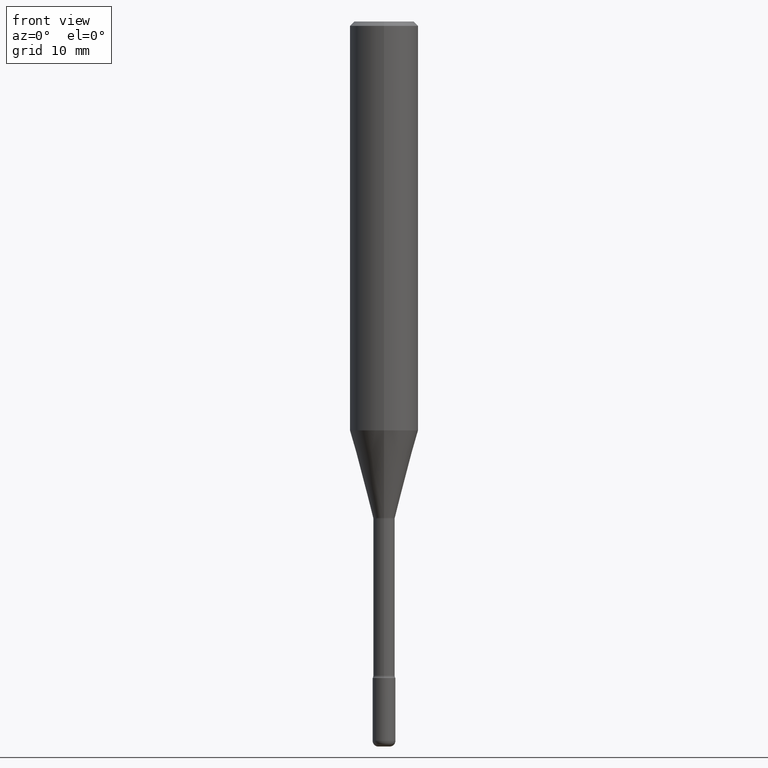
[diagram: clean part render]
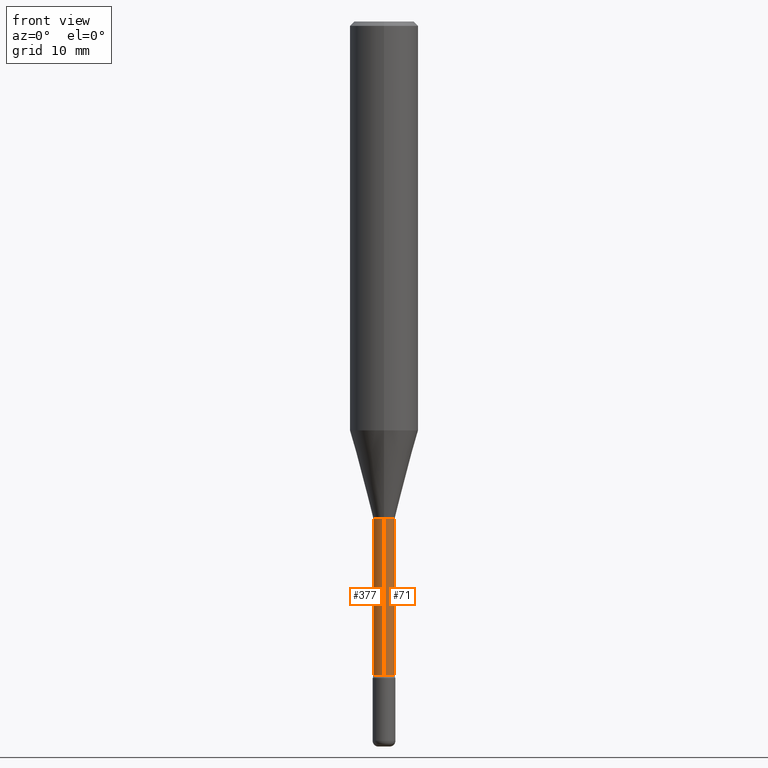
[diagram: same view with one multi-face feature highlighted, each face labeled with its STEP entity id]
A machine part, front view. The highlighted faces form ONE feature: a constant-radius fillet chain: 2 tangent blend faces with common blend radius 0.9398 mm. The faces share edges in the B-rep.
Their STEP definitions:
[1] entity #377 (Cylinder):
#18 = CARTESIAN_POINT ( 'NONE',  ( -2.583696190743369715E-16, -0.03700000000000792238, -2.255739137763241420 ) ) ;
#27 = CYLINDRICAL_SURFACE ( 'NONE', #176, 0.03700000000000002592 ) ;
#29 = ORIENTED_EDGE ( 'NONE', *, *, #498, .T. ) ;
#39 = ORIENTED_EDGE ( 'NONE', *, *, #352, .T. ) ;
#44 = CARTESIAN_POINT ( 'NONE',  ( -2.583696190743498891E-16, -0.03700000000000598643, -1.714574787463811312 ) ) ;
#51 = CARTESIAN_POINT ( 'NONE',  ( 2.629008122312372037E-16, 0.03700000000000002592, 3.488844028279352540E-16 ) ) ;
#78 = DIRECTION ( 'NONE',  ( -6.982962677686265133E-15, -1.000000000000000000, 3.491594488197586922E-15 ) ) ;
#81 = CIRCLE ( 'NONE', #157, 0.03700000000000004674 ) ;
#97 = ORIENTED_EDGE ( 'NONE', *, *, #169, .F. ) ;
#118 = VECTOR ( 'NONE', #227, 39.37007874015748143 ) ;
#156 = VERTEX_POINT ( 'NONE', #180 ) ;
#157 = AXIS2_PLACEMENT_3D ( 'NONE', #532, #524, #314 ) ;
#169 = EDGE_CURVE ( 'NONE', #197, #554, #451, .T. ) ;
#176 = AXIS2_PLACEMENT_3D ( 'NONE', #385, #392, #78 ) ;
#180 = CARTESIAN_POINT ( 'NONE',  ( 2.712496893764736677E-16, 0.03699999999999217110, -2.255739137763241420 ) ) ;
#187 = DIRECTION ( 'NONE',  ( -2.445389794413230210E-29, 3.491594488197586527E-15, 1.000000000000000000 ) ) ;
#197 = VERTEX_POINT ( 'NONE', #360 ) ;
#227 = DIRECTION ( 'NONE',  ( -2.445389794413230210E-29, 3.491594488197586133E-15, 1.000000000000000000 ) ) ;
#248 = DIRECTION ( 'NONE',  ( -2.445389794413230210E-29, 3.491594488197586133E-15, 1.000000000000000000 ) ) ;
#275 = VECTOR ( 'NONE', #248, 39.37007874015748143 ) ;
#297 = EDGE_CURVE ( 'NONE', #156, #197, #362, .T. ) ;
#314 = DIRECTION ( 'NONE',  ( -6.982962677686265133E-15, -1.000000000000000000, 0.000000000000000000 ) ) ;
#351 = ORIENTED_EDGE ( 'NONE', *, *, #297, .F. ) ;
#352 = EDGE_CURVE ( 'NONE', #571, #554, #469, .T. ) ;
#360 = CARTESIAN_POINT ( 'NONE',  ( 2.629008122312923746E-16, 0.03699999999999400990, -1.714574787463811312 ) ) ;
#362 = LINE ( 'NONE', #51, #118 ) ;
#377 = ADVANCED_FACE ( 'NONE', ( #437 ), #27, .T. ) ;
#385 = CARTESIAN_POINT ( 'NONE',  ( -1.169113584055446105E-44, 1.669184350826100908E-30, 4.780733988912460139E-16 ) ) ;
#392 = DIRECTION ( 'NONE',  ( -2.445389794413230210E-29, 3.491594488197586527E-15, 1.000000000000000000 ) ) ;
#405 = DIRECTION ( 'NONE',  ( -6.982962677686266711E-15, -1.000000000000000000, 0.000000000000000000 ) ) ;
#423 = EDGE_LOOP ( 'NONE', ( #351, #29, #39, #97 ) ) ;
#427 = CARTESIAN_POINT ( 'NONE',  ( -2.583696190743919945E-16, -0.03700000000000002592, 6.072623949545568724E-16 ) ) ;
#437 = FACE_OUTER_BOUND ( 'NONE', #423, .T. ) ;
#451 = CIRCLE ( 'NONE', #503, 0.03699999999999999817 ) ;
#469 = LINE ( 'NONE', #427, #275 ) ;
#486 = CARTESIAN_POINT ( 'NONE',  ( 4.192803687022237208E-29, -5.986599877511191091E-15, -1.714574787463811312 ) ) ;
#498 = EDGE_CURVE ( 'NONE', #156, #571, #81, .T. ) ;
#503 = AXIS2_PLACEMENT_3D ( 'NONE', #486, #187, #405 ) ;
#524 = DIRECTION ( 'NONE',  ( -2.445389794413230210E-29, 3.491594488197586527E-15, 1.000000000000000000 ) ) ;
#532 = CARTESIAN_POINT ( 'NONE',  ( 5.516161466344729817E-29, -7.876126340225709197E-15, -2.255739137763241420 ) ) ;
#554 = VERTEX_POINT ( 'NONE', #44 ) ;
#571 = VERTEX_POINT ( 'NONE', #18 ) ;
[2] entity #71 (Cylinder):
#18 = CARTESIAN_POINT ( 'NONE',  ( -2.583696190743369715E-16, -0.03700000000000792238, -2.255739137763241420 ) ) ;
#20 = ORIENTED_EDGE ( 'NONE', *, *, #297, .T. ) ;
#35 = DIRECTION ( 'NONE',  ( -2.445389794413230210E-29, 3.491594488197586527E-15, 1.000000000000000000 ) ) ;
#40 = DIRECTION ( 'NONE',  ( -6.982962677686265133E-15, -1.000000000000000000, 3.491594488197586922E-15 ) ) ;
#44 = CARTESIAN_POINT ( 'NONE',  ( -2.583696190743498891E-16, -0.03700000000000598643, -1.714574787463811312 ) ) ;
#51 = CARTESIAN_POINT ( 'NONE',  ( 2.629008122312372037E-16, 0.03700000000000002592, 3.488844028279352540E-16 ) ) ;
#71 = ADVANCED_FACE ( 'NONE', ( #521 ), #442, .T. ) ;
#90 = CIRCLE ( 'NONE', #404, 0.03700000000000004674 ) ;
#100 = CIRCLE ( 'NONE', #244, 0.03699999999999999817 ) ;
#118 = VECTOR ( 'NONE', #227, 39.37007874015748143 ) ;
#137 = DIRECTION ( 'NONE',  ( -2.445389794413230210E-29, 3.491594488197586527E-15, 1.000000000000000000 ) ) ;
#156 = VERTEX_POINT ( 'NONE', #180 ) ;
#180 = CARTESIAN_POINT ( 'NONE',  ( 2.712496893764736677E-16, 0.03699999999999217110, -2.255739137763241420 ) ) ;
#195 = EDGE_CURVE ( 'NONE', #554, #197, #100, .T. ) ;
#197 = VERTEX_POINT ( 'NONE', #360 ) ;
#220 = DIRECTION ( 'NONE',  ( -2.445389794413230210E-29, 3.491594488197586527E-15, 1.000000000000000000 ) ) ;
#227 = DIRECTION ( 'NONE',  ( -2.445389794413230210E-29, 3.491594488197586133E-15, 1.000000000000000000 ) ) ;
#244 = AXIS2_PLACEMENT_3D ( 'NONE', #542, #137, #322 ) ;
#248 = DIRECTION ( 'NONE',  ( -2.445389794413230210E-29, 3.491594488197586133E-15, 1.000000000000000000 ) ) ;
#275 = VECTOR ( 'NONE', #248, 39.37007874015748143 ) ;
#291 = ORIENTED_EDGE ( 'NONE', *, *, #195, .F. ) ;
#297 = EDGE_CURVE ( 'NONE', #156, #197, #362, .T. ) ;
#322 = DIRECTION ( 'NONE',  ( -6.982962677686266711E-15, -1.000000000000000000, 0.000000000000000000 ) ) ;
#337 = CARTESIAN_POINT ( 'NONE',  ( 5.516161466344729817E-29, -7.876126340225709197E-15, -2.255739137763241420 ) ) ;
#352 = EDGE_CURVE ( 'NONE', #571, #554, #469, .T. ) ;
#360 = CARTESIAN_POINT ( 'NONE',  ( 2.629008122312923746E-16, 0.03699999999999400990, -1.714574787463811312 ) ) ;
#362 = LINE ( 'NONE', #51, #118 ) ;
#382 = EDGE_LOOP ( 'NONE', ( #477, #20, #291, #543 ) ) ;
#396 = EDGE_CURVE ( 'NONE', #571, #156, #90, .T. ) ;
#404 = AXIS2_PLACEMENT_3D ( 'NONE', #337, #35, #474 ) ;
#427 = CARTESIAN_POINT ( 'NONE',  ( -2.583696190743919945E-16, -0.03700000000000002592, 6.072623949545568724E-16 ) ) ;
#442 = CYLINDRICAL_SURFACE ( 'NONE', #461, 0.03700000000000002592 ) ;
#461 = AXIS2_PLACEMENT_3D ( 'NONE', #518, #220, #40 ) ;
#469 = LINE ( 'NONE', #427, #275 ) ;
#474 = DIRECTION ( 'NONE',  ( -6.982962677686265133E-15, -1.000000000000000000, 0.000000000000000000 ) ) ;
#477 = ORIENTED_EDGE ( 'NONE', *, *, #396, .T. ) ;
#518 = CARTESIAN_POINT ( 'NONE',  ( -1.169113584055446105E-44, 1.669184350826100908E-30, 4.780733988912460139E-16 ) ) ;
#521 = FACE_OUTER_BOUND ( 'NONE', #382, .T. ) ;
#542 = CARTESIAN_POINT ( 'NONE',  ( 4.192803687022237208E-29, -5.986599877511191091E-15, -1.714574787463811312 ) ) ;
#543 = ORIENTED_EDGE ( 'NONE', *, *, #352, .F. ) ;
#554 = VERTEX_POINT ( 'NONE', #44 ) ;
#571 = VERTEX_POINT ( 'NONE', #18 ) ;